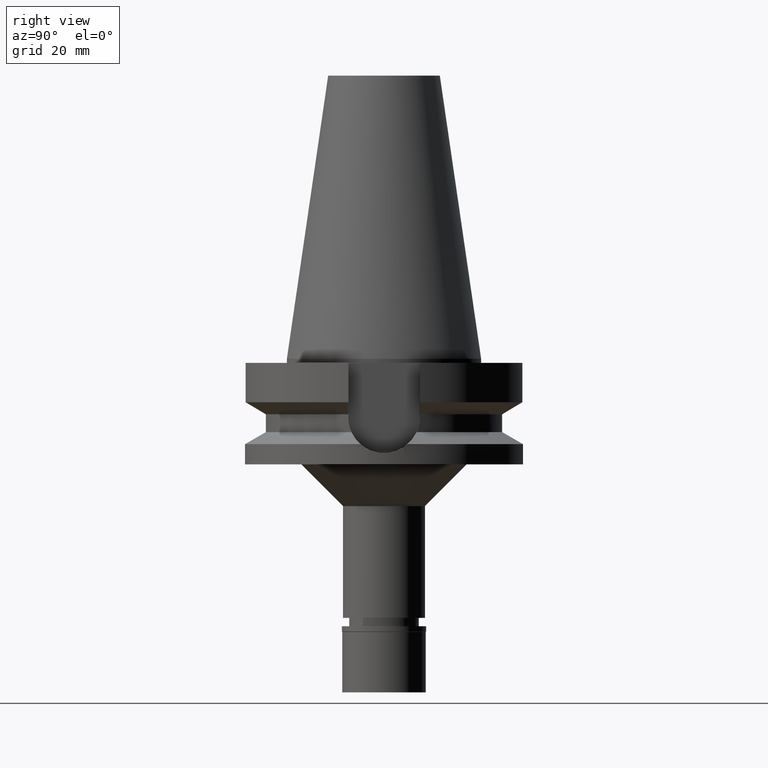
[diagram: clean part render]
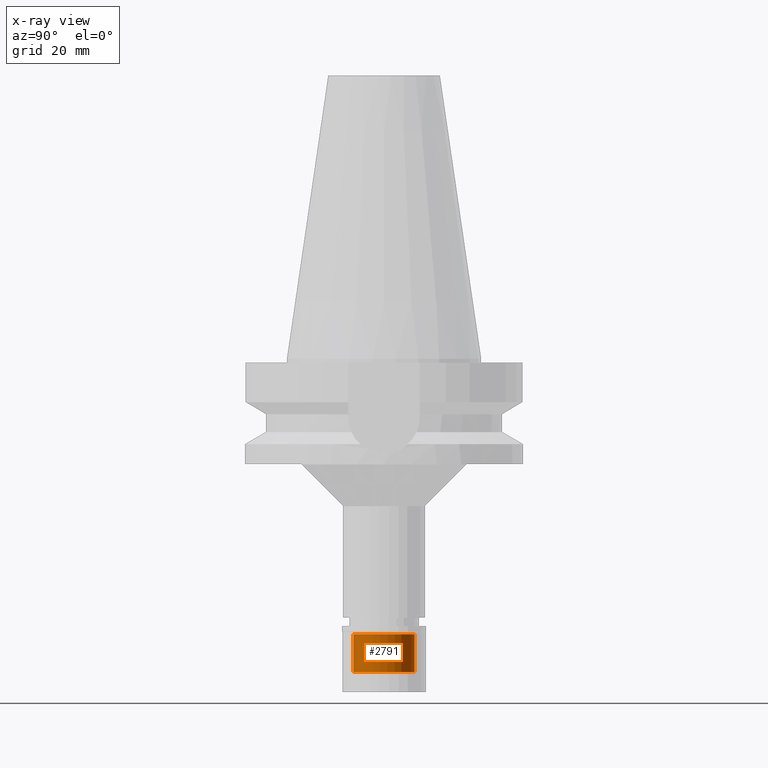
[diagram: x-ray — body ghosted, one internal face saturated and labeled with its STEP entity id]
A machine part, right view, then the same camera in x-ray: the body is ghosted and one INTERNAL B-rep face — a face not visible from any outside direction — is saturated and labeled: STEP entity #2791.
In plain terms, the highlighted cylindrical surface (edge-blend (fillet) strip) has radius 11 mm, axis along (0, 0, -1).
Its self-contained STEP definition (entity closure, byte-faithful):
#38 = DIRECTION ( 'NONE',  ( 0.0000000000000000000, -1.000000000000000000, 0.0000000000000000000 ) ) ;
#159 = ORIENTED_EDGE ( 'NONE', *, *, #795, .T. ) ;
#169 = AXIS2_PLACEMENT_3D ( 'NONE', #2227, #751, #38 ) ;
#193 = ORIENTED_EDGE ( 'NONE', *, *, #3091, .T. ) ;
#291 = VERTEX_POINT ( 'NONE', #2732 ) ;
#616 = VERTEX_POINT ( 'NONE', #1408 ) ;
#657 = AXIS2_PLACEMENT_3D ( 'NONE', #2334, #2607, #2347 ) ;
#726 = VERTEX_POINT ( 'NONE', #2833 ) ;
#751 = DIRECTION ( 'NONE',  ( 0.0000000000000000000, 0.0000000000000000000, 1.000000000000000000 ) ) ;
#795 = EDGE_CURVE ( 'NONE', #616, #2910, #2218, .T. ) ;
#842 = LINE ( 'NONE', #1327, #3024 ) ;
#1289 = ORIENTED_EDGE ( 'NONE', *, *, #2535, .T. ) ;
#1293 = DIRECTION ( 'NONE',  ( 0.0000000000000000000, 1.000000000000000000, 0.0000000000000000000 ) ) ;
#1327 = CARTESIAN_POINT ( 'NONE',  ( 0.0000000000000000000, 11.00000000000000000, -16.50000000000000000 ) ) ;
#1408 = CARTESIAN_POINT ( 'NONE',  ( 0.0000000000000000000, -11.00000000000000000, -2.899999999999999911 ) ) ;
#1472 = AXIS2_PLACEMENT_3D ( 'NONE', #2039, #2745, #1293 ) ;
#1481 = CARTESIAN_POINT ( 'NONE',  ( 0.0000000000000000000, -11.00000000000000000, -16.50000000000000000 ) ) ;
#1731 = LINE ( 'NONE', #1481, #1912 ) ;
#1788 = DIRECTION ( 'NONE',  ( 0.0000000000000000000, 0.0000000000000000000, 1.000000000000000000 ) ) ;
#1882 = FACE_OUTER_BOUND ( 'NONE', #2700, .T. ) ;
#1897 = CARTESIAN_POINT ( 'NONE',  ( 0.0000000000000000000, 11.00000000000000000, -2.899999999999999911 ) ) ;
#1912 = VECTOR ( 'NONE', #2440, 1000.000000000000000 ) ;
#2039 = CARTESIAN_POINT ( 'NONE',  ( 0.0000000000000000000, 0.0000000000000000000, -16.50000000000000000 ) ) ;
#2047 = ORIENTED_EDGE ( 'NONE', *, *, #2529, .F. ) ;
#2143 = CYLINDRICAL_SURFACE ( 'NONE', #657, 11.00000000000000000 ) ;
#2218 = CIRCLE ( 'NONE', #169, 11.00000000000000000 ) ;
#2227 = CARTESIAN_POINT ( 'NONE',  ( 0.0000000000000000000, 0.0000000000000000000, -2.899999999999999911 ) ) ;
#2334 = CARTESIAN_POINT ( 'NONE',  ( 0.0000000000000000000, 0.0000000000000000000, 0.0000000000000000000 ) ) ;
#2347 = DIRECTION ( 'NONE',  ( 0.0000000000000000000, -1.000000000000000000, 0.0000000000000000000 ) ) ;
#2440 = DIRECTION ( 'NONE',  ( 0.0000000000000000000, 0.0000000000000000000, 1.000000000000000000 ) ) ;
#2529 = EDGE_CURVE ( 'NONE', #291, #2910, #842, .T. ) ;
#2535 = EDGE_CURVE ( 'NONE', #291, #726, #2722, .T. ) ;
#2607 = DIRECTION ( 'NONE',  ( 0.0000000000000000000, 0.0000000000000000000, -1.000000000000000000 ) ) ;
#2700 = EDGE_LOOP ( 'NONE', ( #1289, #193, #159, #2047 ) ) ;
#2722 = CIRCLE ( 'NONE', #1472, 11.00000000000000000 ) ;
#2732 = CARTESIAN_POINT ( 'NONE',  ( 0.0000000000000000000, 11.00000000000000000, -16.50000000000000000 ) ) ;
#2745 = DIRECTION ( 'NONE',  ( 0.0000000000000000000, 0.0000000000000000000, -1.000000000000000000 ) ) ;
#2791 = ADVANCED_FACE ( 'NONE', ( #1882 ), #2143, .F. ) ;
#2833 = CARTESIAN_POINT ( 'NONE',  ( 0.0000000000000000000, -11.00000000000000000, -16.50000000000000000 ) ) ;
#2910 = VERTEX_POINT ( 'NONE', #1897 ) ;
#3024 = VECTOR ( 'NONE', #1788, 1000.000000000000000 ) ;
#3091 = EDGE_CURVE ( 'NONE', #726, #616, #1731, .T. ) ;